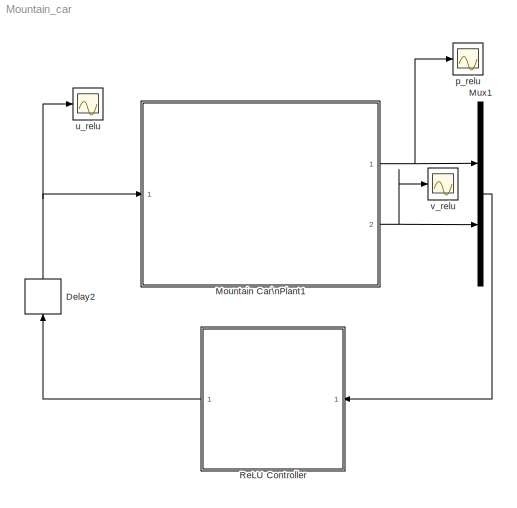
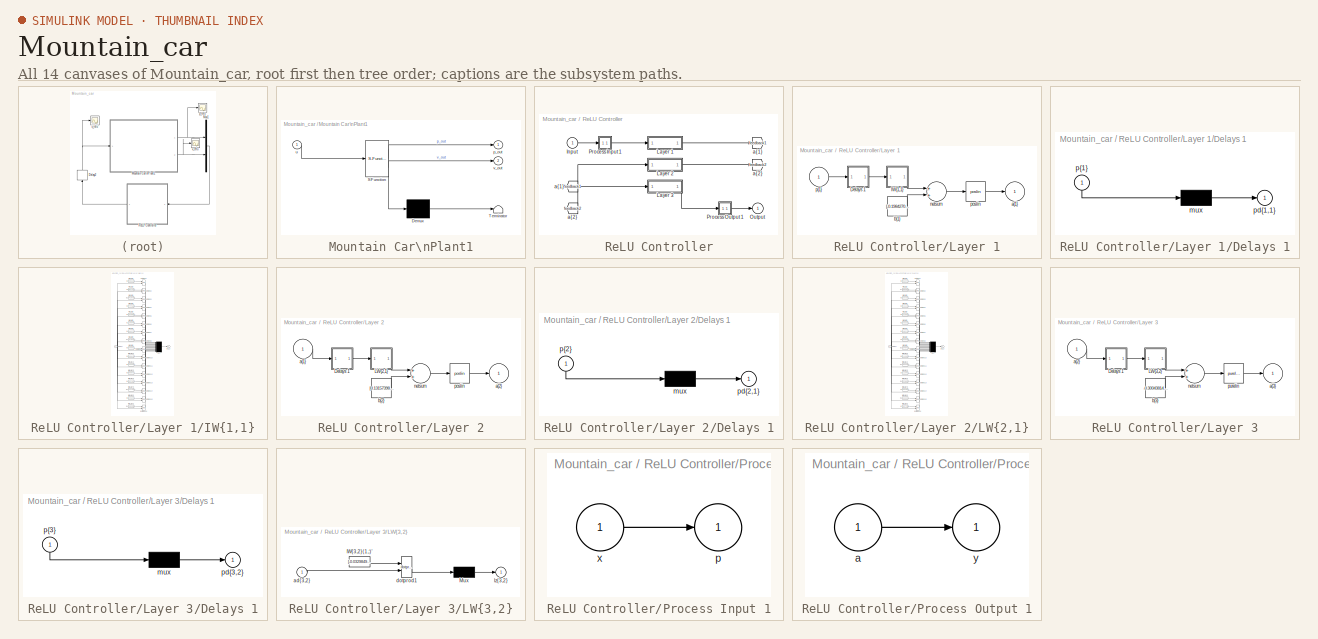
[diagram: thumbnail index - all 14 canvases of the model, root first then tree order]
MODEL Mountain_car
KIND model
BLOCK [Delay] Delay2
  DelayLength = 1
  InitialCondition = 0
  InputPortMap = u0
  Ports = [1, 1]
  SID = 380
BLOCK [SubSystem] Mountain Car\nPlant1
  ErrorFcn = Stateflow.Translate.translate
  PermitHierarchicalResolution = ExplicitOnly
  Ports = [1, 2]
  RequestExecContextInheritance = off
  SFBlockType = Chart
  SID = 378
  TreatAsAtomicUnit = on
BLOCK [Demux] Mountain Car\nPlant1/ Demux 
  Outputs = 1
  Ports = [1, 1]
  SID = 378::90
BLOCK [S-Function] Mountain Car\nPlant1/ SFunction 
  EnableBusSupport = on
  FunctionName = sf_sfun
  PortCounts = [1 3]
  Ports = [1, 3]
  SFcnIsStateOwnerBlock = off
  SFunctionDeploymentMode = off
  SID = 378::89
  Tag = Stateflow S-Function Mountain_car 1
BLOCK [Terminator] Mountain Car\nPlant1/ Terminator 
  SID = 378::91
BLOCK [Outport] Mountain Car\nPlant1/p_out
  IconDisplay = Port number
  SID = 378::94
BLOCK [Inport] Mountain Car\nPlant1/u
  IconDisplay = Port number
  SID = 378::93
BLOCK [Outport] Mountain Car\nPlant1/v_out
  IconDisplay = Port number
  Port = 2
  SID = 378::95
BLOCK [Mux] Mux1
  DisplayOption = bar
  Inputs = 2
  Ports = [2, 1]
  SID = 379
BLOCK [SubSystem] ReLU Controller
  Ports = [1, 1]
  RequestExecContextInheritance = off
  SID = 871
BLOCK [From] ReLU Controller/ a{1} 
  GotoTag = feedback1
  SID = 873
BLOCK [From] ReLU Controller/ a{2} 
  GotoTag = feedback2
  SID = 874
BLOCK [Inport] ReLU Controller/Input
  IconDisplay = Port number
  PortDimensions = 2
  SID = 872
BLOCK [SubSystem] ReLU Controller/Layer 1
  Ports = [1, 1]
  RequestExecContextInheritance = off
  SID = 875
BLOCK [SubSystem] ReLU Controller/Layer 1/Delays 1
  Ports = [1, 1]
  RequestExecContextInheritance = off
  SID = 877
BLOCK [Mux] ReLU Controller/Layer 1/Delays 1/mux
  Inputs = 1
  Ports = [1, 1]
  SID = 879
BLOCK [Outport] ReLU Controller/Layer 1/Delays 1/pd{1,1}
  IconDisplay = Port number
  SID = 880
BLOCK [Inport] ReLU Controller/Layer 1/Delays 1/p{1}
  IconDisplay = Port number
  PortDimensions = 2
  SID = 878
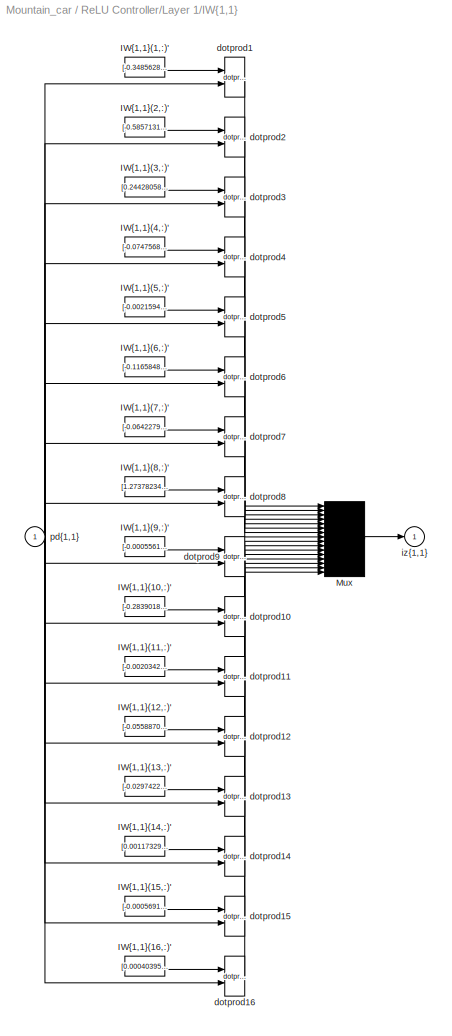
BLOCK [SubSystem] ReLU Controller/Layer 1/IW{1,1}
  Ports = [1, 1]
  RequestExecContextInheritance = off
  SID = 881
BLOCK [Constant] ReLU Controller/Layer 1/IW{1,1}/IW{1,1}(1,:)'
  SID = 883
  Value = [-0.348562847613831106041715202081832103431224822998046875;-1.65240573800335166509967166348360478878021240234375]
BLOCK [Constant] ReLU Controller/Layer 1/IW{1,1}/IW{1,1}(10,:)'
  SID = 884
  Value = [-0.2839018314838954726297970410087145864963531494140625;-3.52518355706391783854769528261385858058929443359375]
BLOCK [Constant] ReLU Controller/Layer 1/IW{1,1}/IW{1,1}(11,:)'
  SID = 885
  Value = [-0.0020342002422465699229547908544191159307956695556640625;-0.0022724958653689308375744904111570576787926256656646728515625]
BLOCK [Constant] ReLU Controller/Layer 1/IW{1,1}/IW{1,1}(12,:)'
  SID = 886
  Value = [-0.05588706100418290578790703193590161390602588653564453125;-0.0160068003198646398310689420441121910698711872100830078125]
BLOCK [Constant] ReLU Controller/Layer 1/IW{1,1}/IW{1,1}(13,:)'
  SID = 887
  Value = [-0.02974222116160064877110613679178641177713871002197265625;0.745456607589495501287046863581053912639617919921875]
BLOCK [Constant] ReLU Controller/Layer 1/IW{1,1}/IW{1,1}(14,:)'
  SID = 888
  Value = [0.0011732961938809246572879008141399026499129831790924072265625;-0.000543001556196413999455518961667621624656021595001220703125]
BLOCK [Constant] ReLU Controller/Layer 1/IW{1,1}/IW{1,1}(15,:)'
  SID = 889
  Value = [-0.000569175677719086577262264103893585343030281364917755126953125;0.0031515685445352814401942520561306082527153193950653076171875]
BLOCK [Constant] ReLU Controller/Layer 1/IW{1,1}/IW{1,1}(16,:)'
  SID = 890
  Value = [0.0004039511826204295161409085768156046469812281429767608642578125;0.0002282704932282597566801929378499380618450231850147247314453125]
BLOCK [Constant] ReLU Controller/Layer 1/IW{1,1}/IW{1,1}(2,:)'
  SID = 891
  Value = [-0.5857131847075069952524017935502342879772186279296875;0.44318605497440588525392968222149647772312164306640625]
BLOCK [Constant] ReLU Controller/Layer 1/IW{1,1}/IW{1,1}(3,:)'
  SID = 892
  Value = [0.2442805834309687285088585895209689624607563018798828125;1.6303609995706775936952226402354426681995391845703125]
BLOCK [Constant] ReLU Controller/Layer 1/IW{1,1}/IW{1,1}(4,:)'
  SID = 893
  Value = [-0.0747568175575949733779879124995204620063304901123046875;1.0944090779874553476247456273995339870452880859375]
BLOCK [Constant] ReLU Controller/Layer 1/IW{1,1}/IW{1,1}(5,:)'
  SID = 894
  Value = [-0.0021594126615349725113734979942137215402908623218536376953125;-0.00128416670957920528613194210976189424400217831134796142578125]
BLOCK [Constant] ReLU Controller/Layer 1/IW{1,1}/IW{1,1}(6,:)'
  SID = 895
  Value = [-0.1165848908540518535925656351537327282130718231201171875;0.2375447925571311513781580515569658018648624420166015625]
BLOCK [Constant] ReLU Controller/Layer 1/IW{1,1}/IW{1,1}(7,:)'
  SID = 896
  Value = [-0.0642279094021485363885659580773790366947650909423828125;0.51193444151615230541807477493421174585819244384765625]
BLOCK [Constant] ReLU Controller/Layer 1/IW{1,1}/IW{1,1}(8,:)'
  SID = 897
  Value = [1.2737823406388024682911463969503529369831085205078125;-0.410054151845961889488734186670626513659954071044921875]
BLOCK [Constant] ReLU Controller/Layer 1/IW{1,1}/IW{1,1}(9,:)'
  SID = 898
  Value = [-0.000556169140947096788361869723615882321610115468502044677734375;-0.00285606358020452921753218333833501674234867095947265625]
BLOCK [Mux] ReLU Controller/Layer 1/IW{1,1}/Mux
  Inputs = 16
  Ports = [16, 1]
  SID = 899
BLOCK [Reference] ReLU Controller/Layer 1/IW{1,1}/dotprod1  REF=neural/Weight Functions/dotprod
  Ports = [2, 1]
  SID = 900
  SourceBlock = neural/Weight Functions/dotprod
  SourceProductBaseCode = NN
  SourceProductName = Neural Network Toolbox
  SourceType = DOTPROD
BLOCK [Reference] ReLU Controller/Layer 1/IW{1,1}/dotprod10  REF=neural/Weight Functions/dotprod
  Ports = [2, 1]
  SID = 901
  SourceBlock = neural/Weight Functions/dotprod
  SourceProductBaseCode = NN
  SourceProductName = Neural Network Toolbox
  SourceType = DOTPROD
BLOCK [Reference] ReLU Controller/Layer 1/IW{1,1}/dotprod11  REF=neural/Weight Functions/dotprod
  Ports = [2, 1]
  SID = 902
  SourceBlock = neural/Weight Functions/dotprod
  SourceProductBaseCode = NN
  SourceProductName = Neural Network Toolbox
  SourceType = DOTPROD
BLOCK [Reference] ReLU Controller/Layer 1/IW{1,1}/dotprod12  REF=neural/Weight Functions/dotprod
  Ports = [2, 1]
  SID = 903
  SourceBlock = neural/Weight Functions/dotprod
  SourceProductBaseCode = NN
  SourceProductName = Neural Network Toolbox
  SourceType = DOTPROD
BLOCK [Reference] ReLU Controller/Layer 1/IW{1,1}/dotprod13  REF=neural/Weight Functions/dotprod
  Ports = [2, 1]
  SID = 904
  SourceBlock = neural/Weight Functions/dotprod
  SourceProductBaseCode = NN
  SourceProductName = Neural Network Toolbox
  SourceType = DOTPROD
BLOCK [Reference] ReLU Controller/Layer 1/IW{1,1}/dotprod14  REF=neural/Weight Functions/dotprod
  Ports = [2, 1]
  SID = 905
  SourceBlock = neural/Weight Functions/dotprod
  SourceProductBaseCode = NN
  SourceProductName = Neural Network Toolbox
  SourceType = DOTPROD
BLOCK [Reference] ReLU Controller/Layer 1/IW{1,1}/dotprod15  REF=neural/Weight Functions/dotprod
  Ports = [2, 1]
  SID = 906
  SourceBlock = neural/Weight Functions/dotprod
  SourceProductBaseCode = NN
  SourceProductName = Neural Network Toolbox
  SourceType = DOTPROD
BLOCK [Reference] ReLU Controller/Layer 1/IW{1,1}/dotprod16  REF=neural/Weight Functions/dotprod
  Ports = [2, 1]
  SID = 907
  SourceBlock = neural/Weight Functions/dotprod
  SourceProductBaseCode = NN
  SourceProductName = Neural Network Toolbox
  SourceType = DOTPROD
BLOCK [Reference] ReLU Controller/Layer 1/IW{1,1}/dotprod2  REF=neural/Weight Functions/dotprod
  Ports = [2, 1]
  SID = 908
  SourceBlock = neural/Weight Functions/dotprod
  SourceProductBaseCode = NN
  SourceProductName = Neural Network Toolbox
  SourceType = DOTPROD
BLOCK [Reference] ReLU Controller/Layer 1/IW{1,1}/dotprod3  REF=neural/Weight Functions/dotprod
  Ports = [2, 1]
  SID = 909
  SourceBlock = neural/Weight Functions/dotprod
  SourceProductBaseCode = NN
  SourceProductName = Neural Network Toolbox
  SourceType = DOTPROD
BLOCK [Reference] ReLU Controller/Layer 1/IW{1,1}/dotprod4  REF=neural/Weight Functions/dotprod
  Ports = [2, 1]
  SID = 910
  SourceBlock = neural/Weight Functions/dotprod
  SourceProductBaseCode = NN
  SourceProductName = Neural Network Toolbox
  SourceType = DOTPROD
BLOCK [Reference] ReLU Controller/Layer 1/IW{1,1}/dotprod5  REF=neural/Weight Functions/dotprod
  Ports = [2, 1]
  SID = 911
  SourceBlock = neural/Weight Functions/dotprod
  SourceProductBaseCode = NN
  SourceProductName = Neural Network Toolbox
  SourceType = DOTPROD
BLOCK [Reference] ReLU Controller/Layer 1/IW{1,1}/dotprod6  REF=neural/Weight Functions/dotprod
  Ports = [2, 1]
  SID = 912
  SourceBlock = neural/Weight Functions/dotprod
  SourceProductBaseCode = NN
  SourceProductName = Neural Network Toolbox
  SourceType = DOTPROD
BLOCK [Reference] ReLU Controller/Layer 1/IW{1,1}/dotprod7  REF=neural/Weight Functions/dotprod
  Ports = [2, 1]
  SID = 913
  SourceBlock = neural/Weight Functions/dotprod
  SourceProductBaseCode = NN
  SourceProductName = Neural Network Toolbox
  SourceType = DOTPROD
BLOCK [Reference] ReLU Controller/Layer 1/IW{1,1}/dotprod8  REF=neural/Weight Functions/dotprod
  Ports = [2, 1]
  SID = 914
  SourceBlock = neural/Weight Functions/dotprod
  SourceProductBaseCode = NN
  SourceProductName = Neural Network Toolbox
  SourceType = DOTPROD
BLOCK [Reference] ReLU Controller/Layer 1/IW{1,1}/dotprod9  REF=neural/Weight Functions/dotprod
  Ports = [2, 1]
  SID = 915
  SourceBlock = neural/Weight Functions/dotprod
  SourceProductBaseCode = NN
  SourceProductName = Neural Network Toolbox
  SourceType = DOTPROD
BLOCK [Outport] ReLU Controller/Layer 1/IW{1,1}/iz{1,1}
  IconDisplay = Port number
  SID = 916
BLOCK [Inport] ReLU Controller/Layer 1/IW{1,1}/pd{1,1}
  IconDisplay = Port number
  PortDimensions = 2
  SID = 882
BLOCK [Outport] ReLU Controller/Layer 1/a{1}
  IconDisplay = Port number
  InitialOutput = [0;0;0;0;0;0;0;0;0;0;0;0;0;0;0;0]
  SID = 920
BLOCK [Constant] ReLU Controller/Layer 1/b{1}
  SID = 917
  Value = [-0.19842707948950188967529584260773845016956329345703125;-0.82484856248449889282170488513656891882419586181640625;-0.33017571394162714693010229893843643367290496826171875;-0.136560710019531794667813073829165659844875335693359375;-0.0033155322685735817180019413541458561667241156101226806640625;-0.1641898548658718703929793036877526901662349700927734375;-0.1205203352762782981200118115339137148112058...<+560ch>
BLOCK [Sum] ReLU Controller/Layer 1/netsum
  Inputs = 2
  Ports = [2, 1]
  SID = 918
BLOCK [Reference] ReLU Controller/Layer 1/poslin  REF=neural/Transfer Functions/poslin
  Ports = [1, 1]
  SID = 919
  SourceBlock = neural/Transfer Functions/poslin
  SourceProductBaseCode = NN
  SourceProductName = Neural Network Toolbox
  SourceType = POSLIN
BLOCK [Inport] ReLU Controller/Layer 1/p{1}
  IconDisplay = Port number
  PortDimensions = 2
  SID = 876
BLOCK [SubSystem] ReLU Controller/Layer 2
  Ports = [1, 1]
  RequestExecContextInheritance = off
  SID = 921
BLOCK [SubSystem] ReLU Controller/Layer 2/Delays 1
  Ports = [1, 1]
  RequestExecContextInheritance = off
  SID = 923
BLOCK [Mux] ReLU Controller/Layer 2/Delays 1/mux
  Inputs = 1
  Ports = [1, 1]
  SID = 925
BLOCK [Outport] ReLU Controller/Layer 2/Delays 1/pd{2,1}
  IconDisplay = Port number
  SID = 926
BLOCK [Inport] ReLU Controller/Layer 2/Delays 1/p{2}
  IconDisplay = Port number
  PortDimensions = 16
  SID = 924
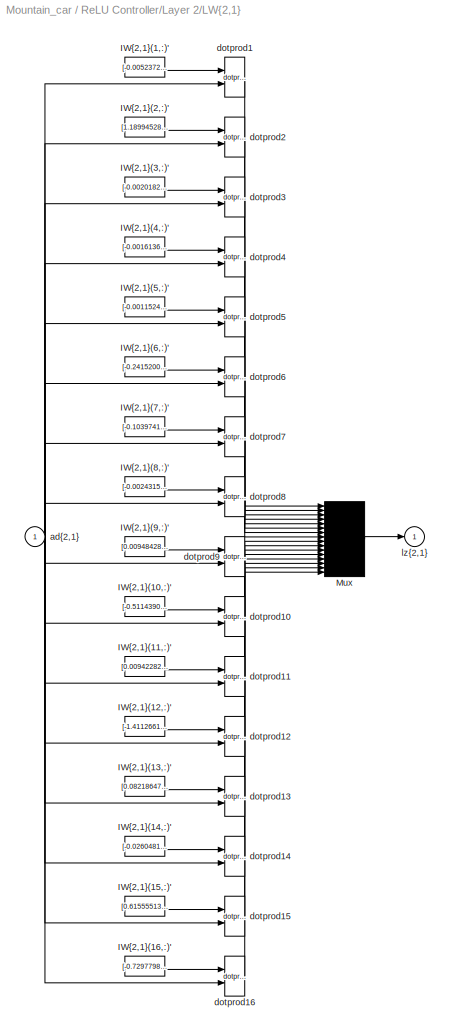
BLOCK [SubSystem] ReLU Controller/Layer 2/LW{2,1}
  Ports = [1, 1]
  RequestExecContextInheritance = off
  SID = 927
BLOCK [Constant] ReLU Controller/Layer 2/LW{2,1}/IW{2,1}(1,:)'
  SID = 929
  Value = [-0.005237243223805816694227388552462798543274402618408203125;0.00503378156334402700189389889828817103989422321319580078125;-0.00069166898801620107194165765207571894279681146144866943359375;-0.01434045966512993881825099862226124969311058521270751953125;-0.00298714015918485724376818524206100846640765666961669921875;0.02108252964325500744546815212743240408599376678466796875;0.07358578977761696948700...<+599ch>
BLOCK [Constant] ReLU Controller/Layer 2/LW{2,1}/IW{2,1}(10,:)'
  SID = 930
  Value = [-0.51143908204196197875290863521513529121875762939453125;-0.0629753401477420038379051447918755002319812774658203125;0.4148378321030830040427872518193908035755157470703125;0.6484289283279636162404813148896209895610809326171875;-0.00174678205904930700272104093784264478017576038837432861328125;0.223011569577855561785639793015434406697750091552734375;0.459284959640543444248095283910515718162059783935...<+558ch>
BLOCK [Constant] ReLU Controller/Layer 2/LW{2,1}/IW{2,1}(11,:)'
  SID = 931
  Value = [0.00942282931057902839455664434353820979595184326171875;0.0028904967967546203906625823520926132914610207080841064453125;-0.0004595582351457297583773031757203852976090274751186370849609375;0.00131390800811133356962301377279800362884998321533203125;0.002478005465313070330990452561081838211975991725921630859375;0.00039166452724749621465416549170868165674619376659393310546875;-0.002180063214496620431...<+620ch>
BLOCK [Constant] ReLU Controller/Layer 2/LW{2,1}/IW{2,1}(12,:)'
  SID = 932
  Value = [-1.411266109279275315913082522456534206867218017578125;0.019565922441010026588958936599738080985844135284423828125;0.07354248507361516029590120524517260491847991943359375;0.07774449888305236255892083363505662418901920318603515625;0.00026726699972753919544443679257028634310699999332427978515625;0.03302012332293803587024427770302281714975833892822265625;0.1429751442139763073502223278410383500158786...<+569ch>
BLOCK [Constant] ReLU Controller/Layer 2/LW{2,1}/IW{2,1}(13,:)'
  SID = 933
  Value = [0.08218647484270864833622027845194679684937000274658203125;0.01084047895224183981344179272809924441389739513397216796875;-0.178638397928594649943789818280492909252643585205078125;-0.0983961582550936519897533116818522103130817413330078125;0.0003635638631690380514864535665964240251923911273479461669921875;-0.024624290353607823644832564013995579443871974945068359375;0.0630341784988404929546135235796...<+583ch>
BLOCK [Constant] ReLU Controller/Layer 2/LW{2,1}/IW{2,1}(14,:)'
  SID = 934
  Value = [-0.02604811843116398850650483609570073895156383514404296875;0.039105294341659220525020401737492647953331470489501953125;-0.6854929799926183786595856872736476361751556396484375;-1.2282979435447149985094483781722374260425567626953125;0.0023541350711067214607208342158628511242568492889404296875;-0.419126625007286202073686354196979664266109466552734375;-0.819702140634721132528284215368330478668212890...<+546ch>
BLOCK [Constant] ReLU Controller/Layer 2/LW{2,1}/IW{2,1}(15,:)'
  SID = 935
  Value = [0.6155551351294812345571472178562544286251068115234375;0.0046001053168681672878026489570402191020548343658447265625;-0.5719041305267393848765777875087223947048187255859375;-0.85759411877788915834486260791891254484653472900390625;-0.00258674523061430509940361588405721704475581645965576171875;-0.2963866507386507809229669874184764921665191650390625;-0.488778959742162621981975689777755178511142730712...<+551ch>
BLOCK [Constant] ReLU Controller/Layer 2/LW{2,1}/IW{2,1}(16,:)'
  SID = 936
  Value = [-0.72977988035714236314532854521530680358409881591796875;-0.08910289179525847369500723971214029006659984588623046875;0.428292341106007612427930553167243488132953643798828125;0.95835178195288650560001997291692532598972320556640625;-0.001519837702163150117140588690745062194764614105224609375;0.3254200300566605363883354584686458110809326171875;0.5587164672175504165352322161197662353515625;-0.4788306...<+541ch>
BLOCK [Constant] ReLU Controller/Layer 2/LW{2,1}/IW{2,1}(2,:)'
  SID = 937
  Value = [1.1899452875869338530634422568255104124546051025390625;0.1230910479948144342632332381981541402637958526611328125;-0.5422283071434657042431126683368347585201263427734375;-1.0206292994610122182308487026602961122989654541015625;0.0017583047173152610391511085907723099808208644390106201171875;-0.349586781245586897259869374465779401361942291259765625;-0.5585963884754069352922556390694808214902877807617...<+547ch>
BLOCK [Constant] ReLU Controller/Layer 2/LW{2,1}/IW{2,1}(3,:)'
  SID = 938
  Value = [-0.0020182713626719470285941770981708032195456326007843017578125;0.00305663369385729237481807984977422165684401988983154296875;-0.001583543565737207704791078555217609391547739505767822265625;-0.0011931709258133130734103044545690863742493093013763427734375;0.0017473826263246909108739490790185300284065306186676025390625;0.0004198049462744922705019490205557985973428003489971160888671875;0.0004099083...<+632ch>
BLOCK [Constant] ReLU Controller/Layer 2/LW{2,1}/IW{2,1}(4,:)'
  SID = 939
  Value = [-0.00161369877411448561961571090961342633818276226520538330078125;0.00059574225889681372593520425340329893515445291996002197265625;0.0027248112706829037688027739250173908658325672149658203125;0.000186235889520932154130028468586033341125585138797760009765625;0.0029115992657808534467556160763024308835156261920928955078125;-0.0033130612554963649075967513368823347263969480991363525390625;-0.003354986...<+641ch>
BLOCK [Constant] ReLU Controller/Layer 2/LW{2,1}/IW{2,1}(5,:)'
  SID = 940
  Value = [-0.0011524364233181879670075975496956743882037699222564697265625;0.0027540298678904030597880403519184255856089293956756591796875;-0.00057762158493066960603112836025729848188348114490509033203125;0.0026563677483517574885729661815503277466632425785064697265625;0.00145588560512573280368575634469152646488510072231292724609375;0.002074913814746711347714036577372098690830171108245849609375;-0.003383772...<+638ch>
BLOCK [Constant] ReLU Controller/Layer 2/LW{2,1}/IW{2,1}(6,:)'
  SID = 941
  Value = [-0.241520076144322803912700692308135330677032470703125;-0.0318765647519468064974290655300137586891651153564453125;0.181223825696174623001155623569502495229244232177734375;0.311597980209323666134224595225532539188861846923828125;-0.0025860731454763231929039335454945103265345096588134765625;0.10533522634288404462576949072172283194959163665771484375;0.199925697688085990399997626809636130928993225097...<+558ch>
BLOCK [Constant] ReLU Controller/Layer 2/LW{2,1}/IW{2,1}(7,:)'
  SID = 942
  Value = [-0.10397419503319195455137702310821623541414737701416015625;-0.01309865143530745089373024114820509566925466060638427734375;0.0708504400110334942031187210886855609714984893798828125;0.11575107714388710444808339161681942641735076904296875;-0.0033045758161354380107177508563154333387501537799835205078125;0.040836738265295650929243009841229650191962718963623046875;0.07627241718338911846686301032605115...<+580ch>
BLOCK [Constant] ReLU Controller/Layer 2/LW{2,1}/IW{2,1}(8,:)'
  SID = 943
  Value = [-0.0024315015690445419306586760654909085133112967014312744140625;0.002115717116402882590209255653235231875441968441009521484375;0.00083760902698425750319277671707141053047962486743927001953125;0.000849064752478394225120028604436583918868564069271087646484375;-0.003261001731163770504806631578276210348121821880340576171875;-0.000771834347589562923264150384738968568854033946990966796875;-0.002042177...<+632ch>
BLOCK [Constant] ReLU Controller/Layer 2/LW{2,1}/IW{2,1}(9,:)'
  SID = 944
  Value = [0.00948428214091578090927381339270141324959695339202880859375;-0.000719908698207419946342444649900471631553955376148223876953125;-0.002651631874824963118475462664491715258918702602386474609375;-0.00333251240856166468240484590523919905535876750946044921875;-0.003246578786211612270562465454304401646368205547332763671875;0.0025021910264577452466527862640077728428877890110015869140625;-0.001674236107...<+633ch>
BLOCK [Mux] ReLU Controller/Layer 2/LW{2,1}/Mux
  Inputs = 16
  Ports = [16, 1]
  SID = 945
BLOCK [Inport] ReLU Controller/Layer 2/LW{2,1}/ad{2,1}
  IconDisplay = Port number
  PortDimensions = 16
  SID = 928
BLOCK [Reference] ReLU Controller/Layer 2/LW{2,1}/dotprod1  REF=neural/Weight Functions/dotprod
  Ports = [2, 1]
  SID = 946
  SourceBlock = neural/Weight Functions/dotprod
  SourceProductBaseCode = NN
  SourceProductName = Neural Network Toolbox
  SourceType = DOTPROD
BLOCK [Reference] ReLU Controller/Layer 2/LW{2,1}/dotprod10  REF=neural/Weight Functions/dotprod
  Ports = [2, 1]
  SID = 947
  SourceBlock = neural/Weight Functions/dotprod
  SourceProductBaseCode = NN
  SourceProductName = Neural Network Toolbox
  SourceType = DOTPROD
BLOCK [Reference] ReLU Controller/Layer 2/LW{2,1}/dotprod11  REF=neural/Weight Functions/dotprod
  Ports = [2, 1]
  SID = 948
  SourceBlock = neural/Weight Functions/dotprod
  SourceProductBaseCode = NN
  SourceProductName = Neural Network Toolbox
  SourceType = DOTPROD
BLOCK [Reference] ReLU Controller/Layer 2/LW{2,1}/dotprod12  REF=neural/Weight Functions/dotprod
  Ports = [2, 1]
  SID = 949
  SourceBlock = neural/Weight Functions/dotprod
  SourceProductBaseCode = NN
  SourceProductName = Neural Network Toolbox
  SourceType = DOTPROD
BLOCK [Reference] ReLU Controller/Layer 2/LW{2,1}/dotprod13  REF=neural/Weight Functions/dotprod
  Ports = [2, 1]
  SID = 950
  SourceBlock = neural/Weight Functions/dotprod
  SourceProductBaseCode = NN
  SourceProductName = Neural Network Toolbox
  SourceType = DOTPROD
BLOCK [Reference] ReLU Controller/Layer 2/LW{2,1}/dotprod14  REF=neural/Weight Functions/dotprod
  Ports = [2, 1]
  SID = 951
  SourceBlock = neural/Weight Functions/dotprod
  SourceProductBaseCode = NN
  SourceProductName = Neural Network Toolbox
  SourceType = DOTPROD
BLOCK [Reference] ReLU Controller/Layer 2/LW{2,1}/dotprod15  REF=neural/Weight Functions/dotprod
  Ports = [2, 1]
  SID = 952
  SourceBlock = neural/Weight Functions/dotprod
  SourceProductBaseCode = NN
  SourceProductName = Neural Network Toolbox
  SourceType = DOTPROD
BLOCK [Reference] ReLU Controller/Layer 2/LW{2,1}/dotprod16  REF=neural/Weight Functions/dotprod
  Ports = [2, 1]
  SID = 953
  SourceBlock = neural/Weight Functions/dotprod
  SourceProductBaseCode = NN
  SourceProductName = Neural Network Toolbox
  SourceType = DOTPROD
BLOCK [Reference] ReLU Controller/Layer 2/LW{2,1}/dotprod2  REF=neural/Weight Functions/dotprod
  Ports = [2, 1]
  SID = 954
  SourceBlock = neural/Weight Functions/dotprod
  SourceProductBaseCode = NN
  SourceProductName = Neural Network Toolbox
  SourceType = DOTPROD
BLOCK [Reference] ReLU Controller/Layer 2/LW{2,1}/dotprod3  REF=neural/Weight Functions/dotprod
  Ports = [2, 1]
  SID = 955
  SourceBlock = neural/Weight Functions/dotprod
  SourceProductBaseCode = NN
  SourceProductName = Neural Network Toolbox
  SourceType = DOTPROD
BLOCK [Reference] ReLU Controller/Layer 2/LW{2,1}/dotprod4  REF=neural/Weight Functions/dotprod
  Ports = [2, 1]
  SID = 956
  SourceBlock = neural/Weight Functions/dotprod
  SourceProductBaseCode = NN
  SourceProductName = Neural Network Toolbox
  SourceType = DOTPROD
BLOCK [Reference] ReLU Controller/Layer 2/LW{2,1}/dotprod5  REF=neural/Weight Functions/dotprod
  Ports = [2, 1]
  SID = 957
  SourceBlock = neural/Weight Functions/dotprod
  SourceProductBaseCode = NN
  SourceProductName = Neural Network Toolbox
  SourceType = DOTPROD
BLOCK [Reference] ReLU Controller/Layer 2/LW{2,1}/dotprod6  REF=neural/Weight Functions/dotprod
  Ports = [2, 1]
  SID = 958
  SourceBlock = neural/Weight Functions/dotprod
  SourceProductBaseCode = NN
  SourceProductName = Neural Network Toolbox
  SourceType = DOTPROD
BLOCK [Reference] ReLU Controller/Layer 2/LW{2,1}/dotprod7  REF=neural/Weight Functions/dotprod
  Ports = [2, 1]
  SID = 959
  SourceBlock = neural/Weight Functions/dotprod
  SourceProductBaseCode = NN
  SourceProductName = Neural Network Toolbox
  SourceType = DOTPROD
BLOCK [Reference] ReLU Controller/Layer 2/LW{2,1}/dotprod8  REF=neural/Weight Functions/dotprod
  Ports = [2, 1]
  SID = 960
  SourceBlock = neural/Weight Functions/dotprod
  SourceProductBaseCode = NN
  SourceProductName = Neural Network Toolbox
  SourceType = DOTPROD
BLOCK [Reference] ReLU Controller/Layer 2/LW{2,1}/dotprod9  REF=neural/Weight Functions/dotprod
  Ports = [2, 1]
  SID = 961
  SourceBlock = neural/Weight Functions/dotprod
  SourceProductBaseCode = NN
  SourceProductName = Neural Network Toolbox
  SourceType = DOTPROD
BLOCK [Outport] ReLU Controller/Layer 2/LW{2,1}/lz{2,1}
  IconDisplay = Port number
  SID = 962
BLOCK [Inport] ReLU Controller/Layer 2/a{1} 
  IconDisplay = Port number
  PortDimensions = 16
  SID = 922
BLOCK [Outport] ReLU Controller/Layer 2/a{2}
  IconDisplay = Port number
  InitialOutput = [0;0;0;0;0;0;0;0;0;0;0;0;0;0;0;0]
  SID = 966
BLOCK [Constant] ReLU Controller/Layer 2/b{2}
  SID = 963
  Value = [0.131573986155091360306101933019817806780338287353515625;0.06112546510003825928070142481374205090105533599853515625;0.000432920216105484902124889146080022328533232212066650390625;-0.00129211182043121783867556384706176686449907720088958740234375;-0.000151416871686620266475309382059322160785086452960968017578125;0.07366846853674687001234389072124031372368335723876953125;-0.0350503585671957176850277...<+557ch>
BLOCK [Sum] ReLU Controller/Layer 2/netsum
  Inputs = 2
  Ports = [2, 1]
  SID = 964
BLOCK [Reference] ReLU Controller/Layer 2/poslin  REF=neural/Transfer Functions/poslin
  Ports = [1, 1]
  SID = 965
  SourceBlock = neural/Transfer Functions/poslin
  SourceProductBaseCode = NN
  SourceProductName = Neural Network Toolbox
  SourceType = POSLIN
BLOCK [SubSystem] ReLU Controller/Layer 3
  Ports = [1, 1]
  RequestExecContextInheritance = off
  SID = 967
BLOCK [SubSystem] ReLU Controller/Layer 3/Delays 1
  Ports = [1, 1]
  RequestExecContextInheritance = off
  SID = 969
BLOCK [Mux] ReLU Controller/Layer 3/Delays 1/mux
  Inputs = 1
  Ports = [1, 1]
  SID = 971
BLOCK [Outport] ReLU Controller/Layer 3/Delays 1/pd{3,2}
  IconDisplay = Port number
  SID = 972
BLOCK [Inport] ReLU Controller/Layer 3/Delays 1/p{3}
  IconDisplay = Port number
  PortDimensions = 16
  SID = 970
BLOCK [SubSystem] ReLU Controller/Layer 3/LW{3,2}
  Ports = [1, 1]
  RequestExecContextInheritance = off
  SID = 973
BLOCK [Constant] ReLU Controller/Layer 3/LW{3,2}/IW{3,2}(1,:)'
  SID = 975
  Value = [-0.032984948942841395280733962636077194474637508392333984375;0.8352446102172426112275616105762310326099395751953125;-0.00018778882435286804318715081496549146322649903595447540283203125;-0.00015733433815215435748469108290237272740341722965240478515625;-0.003364496013919657767254900448961052461527287960052490234375;0.5697180371777166296709538073628209531307220458984375;0.190104836580280572855272680...<+550ch>
BLOCK [Mux] ReLU Controller/Layer 3/LW{3,2}/Mux
  Inputs = 1
  Ports = [1, 1]
  SID = 976
BLOCK [Inport] ReLU Controller/Layer 3/LW{3,2}/ad{3,2}
  IconDisplay = Port number
  PortDimensions = 16
  SID = 974
BLOCK [Reference] ReLU Controller/Layer 3/LW{3,2}/dotprod1  REF=neural/Weight Functions/dotprod
  Ports = [2, 1]
  SID = 977
  SourceBlock = neural/Weight Functions/dotprod
  SourceProductBaseCode = NN
  SourceProductName = Neural Network Toolbox
  SourceType = DOTPROD
BLOCK [Outport] ReLU Controller/Layer 3/LW{3,2}/lz{3,2}
  IconDisplay = Port number
  SID = 978
BLOCK [Inport] ReLU Controller/Layer 3/a{2} 
  IconDisplay = Port number
  PortDimensions = 16
  SID = 968
BLOCK [Outport] ReLU Controller/Layer 3/a{3}
  IconDisplay = Port number
  InitialOutput = 0
  SID = 982
BLOCK [Constant] ReLU Controller/Layer 3/b{3}
  SID = 979
  Value = -0.300438141595847252318662867764942348003387451171875
BLOCK [Sum] ReLU Controller/Layer 3/netsum
  Inputs = 2
  Ports = [2, 1]
  SID = 980
BLOCK [Reference] ReLU Controller/Layer 3/purelin  REF=neural/Transfer Functions/purelin
  Ports = [1, 1]
  SID = 981
  SourceBlock = neural/Transfer Functions/purelin
  SourceProductBaseCode = NN
  SourceProductName = Neural Network Toolbox
  SourceType = PURELIN
BLOCK [Outport] ReLU Controller/Output
  IconDisplay = Port number
  InitialOutput = 0
  SID = 991
BLOCK [SubSystem] ReLU Controller/Process Input 1
  Ports = [1, 1]
  RequestExecContextInheritance = off
  SID = 983
BLOCK [Outport] ReLU Controller/Process Input 1/p
  IconDisplay = Port number
  PortDimensions = 2
  SID = 985
BLOCK [Inport] ReLU Controller/Process Input 1/x
  IconDisplay = Port number
  PortDimensions = 2
  SID = 984
BLOCK [SubSystem] ReLU Controller/Process Output 1
  Ports = [1, 1]
  RequestExecContextInheritance = off
  SID = 986
BLOCK [Inport] ReLU Controller/Process Output 1/a
  IconDisplay = Port number
  PortDimensions = 1
  SID = 987
BLOCK [Outport] ReLU Controller/Process Output 1/y
  IconDisplay = Port number
  PortDimensions = 1
  SID = 988
BLOCK [Goto] ReLU Controller/a{1}
  GotoTag = feedback1
  SID = 989
BLOCK [Goto] ReLU Controller/a{2}
  GotoTag = feedback2
  SID = 990
BLOCK [Scope] p_relu
  Floating = off
  NumInputPorts = 1
  Ports = [1]
  SID = 382
  ScopeSpecificationString = Simulink.scopes.TimeScopeBlockCfg('CurrentConfiguration', extmgr.ConfigurationSet(extmgr.Configuration('Core','General UI',true),extmgr.Configuration('Core','Source UI',true),extmgr.Configuration('Sources','WiredSimulink',true,'DataLoggingVariableName','ScopeData3'),extmgr.Configuration('Visuals','Time Domain',true,'SerializedDisplays',{struct('MinYLimReal','-1.24991','MaxYLimReal','1.15654','YLab...<+1411ch>
BLOCK [Scope] u_relu
  Floating = off
  NumInputPorts = 1
  Ports = [1]
  SID = 381
  ScopeSpecificationString = Simulink.scopes.TimeScopeBlockCfg('CurrentConfiguration', extmgr.ConfigurationSet(extmgr.Configuration('Core','General UI',true),extmgr.Configuration('Core','Source UI',true),extmgr.Configuration('Sources','WiredSimulink',true,'DataLoggingVariableName','ScopeData2'),extmgr.Configuration('Visuals','Time Domain',true,'SerializedDisplays',{struct('MinYLimReal','-0.12397','MaxYLimReal','1.11572','YLab...<+1395ch>
BLOCK [Scope] v_relu
  Floating = off
  NumInputPorts = 1
  Ports = [1]
  SID = 383
  ScopeSpecificationString = Simulink.scopes.TimeScopeBlockCfg('CurrentConfiguration', extmgr.ConfigurationSet(extmgr.Configuration('Core','General UI',true),extmgr.Configuration('Core','Source UI',true),extmgr.Configuration('Sources','WiredSimulink',true,'DataLoggingVariableName','ScopeData4'),extmgr.Configuration('Visuals','Time Domain',true,'SerializedDisplays',{struct('MinYLimReal','-0.02902','MaxYLimReal','0.0743','YLabe...<+1407ch>
NET Delay2:1 -> Mountain Car\nPlant1:1, u_relu:1
LINE Mountain Car\nPlant1/ Demux :1 -> Mountain Car\nPlant1/ Terminator :1
LINE Mountain Car\nPlant1/ SFunction :1 -> Mountain Car\nPlant1/ Demux :1
LINE Mountain Car\nPlant1/ SFunction :2 -> Mountain Car\nPlant1/p_out:1
LINE Mountain Car\nPlant1/ SFunction :3 -> Mountain Car\nPlant1/v_out:1
LINE Mountain Car\nPlant1/u:1 -> Mountain Car\nPlant1/ SFunction :1
NET Mountain Car\nPlant1:1 -> Mux1:1, p_relu:1
NET Mountain Car\nPlant1:2 -> Mux1:2, v_relu:1
LINE Mux1:1 -> ReLU Controller:1
LINE ReLU Controller/ a{1} :1 -> ReLU Controller/Layer 2:1
LINE ReLU Controller/ a{2} :1 -> ReLU Controller/Layer 3:1
LINE ReLU Controller/Input:1 -> ReLU Controller/Process Input 1:1
LINE ReLU Controller/Layer 1/Delays 1/mux:1 -> ReLU Controller/Layer 1/Delays 1/pd{1,1}:1
LINE ReLU Controller/Layer 1/Delays 1/p{1}:1 -> ReLU Controller/Layer 1/Delays 1/mux:1
LINE ReLU Controller/Layer 1/Delays 1:1 -> ReLU Controller/Layer 1/IW{1,1}:1
LINE ReLU Controller/Layer 1/IW{1,1}/IW{1,1}(1,:)':1 -> ReLU Controller/Layer 1/IW{1,1}/dotprod1:1
LINE ReLU Controller/Layer 1/IW{1,1}/IW{1,1}(10,:)':1 -> ReLU Controller/Layer 1/IW{1,1}/dotprod10:1
LINE ReLU Controller/Layer 1/IW{1,1}/IW{1,1}(11,:)':1 -> ReLU Controller/Layer 1/IW{1,1}/dotprod11:1
LINE ReLU Controller/Layer 1/IW{1,1}/IW{1,1}(12,:)':1 -> ReLU Controller/Layer 1/IW{1,1}/dotprod12:1
LINE ReLU Controller/Layer 1/IW{1,1}/IW{1,1}(13,:)':1 -> ReLU Controller/Layer 1/IW{1,1}/dotprod13:1
LINE ReLU Controller/Layer 1/IW{1,1}/IW{1,1}(14,:)':1 -> ReLU Controller/Layer 1/IW{1,1}/dotprod14:1
LINE ReLU Controller/Layer 1/IW{1,1}/IW{1,1}(15,:)':1 -> ReLU Controller/Layer 1/IW{1,1}/dotprod15:1
LINE ReLU Controller/Layer 1/IW{1,1}/IW{1,1}(16,:)':1 -> ReLU Controller/Layer 1/IW{1,1}/dotprod16:1
LINE ReLU Controller/Layer 1/IW{1,1}/IW{1,1}(2,:)':1 -> ReLU Controller/Layer 1/IW{1,1}/dotprod2:1
LINE ReLU Controller/Layer 1/IW{1,1}/IW{1,1}(3,:)':1 -> ReLU Controller/Layer 1/IW{1,1}/dotprod3:1
LINE ReLU Controller/Layer 1/IW{1,1}/IW{1,1}(4,:)':1 -> ReLU Controller/Layer 1/IW{1,1}/dotprod4:1
LINE ReLU Controller/Layer 1/IW{1,1}/IW{1,1}(5,:)':1 -> ReLU Controller/Layer 1/IW{1,1}/dotprod5:1
LINE ReLU Controller/Layer 1/IW{1,1}/IW{1,1}(6,:)':1 -> ReLU Controller/Layer 1/IW{1,1}/dotprod6:1
LINE ReLU Controller/Layer 1/IW{1,1}/IW{1,1}(7,:)':1 -> ReLU Controller/Layer 1/IW{1,1}/dotprod7:1
LINE ReLU Controller/Layer 1/IW{1,1}/IW{1,1}(8,:)':1 -> ReLU Controller/Layer 1/IW{1,1}/dotprod8:1
LINE ReLU Controller/Layer 1/IW{1,1}/IW{1,1}(9,:)':1 -> ReLU Controller/Layer 1/IW{1,1}/dotprod9:1
LINE ReLU Controller/Layer 1/IW{1,1}/Mux:1 -> ReLU Controller/Layer 1/IW{1,1}/iz{1,1}:1
LINE ReLU Controller/Layer 1/IW{1,1}/dotprod10:1 -> ReLU Controller/Layer 1/IW{1,1}/Mux:10
LINE ReLU Controller/Layer 1/IW{1,1}/dotprod11:1 -> ReLU Controller/Layer 1/IW{1,1}/Mux:11
LINE ReLU Controller/Layer 1/IW{1,1}/dotprod12:1 -> ReLU Controller/Layer 1/IW{1,1}/Mux:12
LINE ReLU Controller/Layer 1/IW{1,1}/dotprod13:1 -> ReLU Controller/Layer 1/IW{1,1}/Mux:13
LINE ReLU Controller/Layer 1/IW{1,1}/dotprod14:1 -> ReLU Controller/Layer 1/IW{1,1}/Mux:14
LINE ReLU Controller/Layer 1/IW{1,1}/dotprod15:1 -> ReLU Controller/Layer 1/IW{1,1}/Mux:15
LINE ReLU Controller/Layer 1/IW{1,1}/dotprod16:1 -> ReLU Controller/Layer 1/IW{1,1}/Mux:16
LINE ReLU Controller/Layer 1/IW{1,1}/dotprod1:1 -> ReLU Controller/Layer 1/IW{1,1}/Mux:1
LINE ReLU Controller/Layer 1/IW{1,1}/dotprod2:1 -> ReLU Controller/Layer 1/IW{1,1}/Mux:2
LINE ReLU Controller/Layer 1/IW{1,1}/dotprod3:1 -> ReLU Controller/Layer 1/IW{1,1}/Mux:3
LINE ReLU Controller/Layer 1/IW{1,1}/dotprod4:1 -> ReLU Controller/Layer 1/IW{1,1}/Mux:4
LINE ReLU Controller/Layer 1/IW{1,1}/dotprod5:1 -> ReLU Controller/Layer 1/IW{1,1}/Mux:5
LINE ReLU Controller/Layer 1/IW{1,1}/dotprod6:1 -> ReLU Controller/Layer 1/IW{1,1}/Mux:6
LINE ReLU Controller/Layer 1/IW{1,1}/dotprod7:1 -> ReLU Controller/Layer 1/IW{1,1}/Mux:7
LINE ReLU Controller/Layer 1/IW{1,1}/dotprod8:1 -> ReLU Controller/Layer 1/IW{1,1}/Mux:8
LINE ReLU Controller/Layer 1/IW{1,1}/dotprod9:1 -> ReLU Controller/Layer 1/IW{1,1}/Mux:9
NET ReLU Controller/Layer 1/IW{1,1}/pd{1,1}:1 -> ReLU Controller/Layer 1/IW{1,1}/dotprod10:2, ReLU Controller/Layer 1/IW{1,1}/dotprod11:2, ReLU Controller/Layer 1/IW{1,1}/dotprod12:2, ReLU Controller/Layer 1/IW{1,1}/dotprod13:2, ReLU Controller/Layer 1/IW{1,1}/dotprod14:2, ReLU Controller/Layer 1/IW{1,1}/dotprod15:2, ReLU Controller/Layer 1/IW{1,1}/dotprod16:2, ReLU Controller/Layer 1/IW{1,1}/dotprod1:2, ReLU Controller/Layer 1/IW{1,1}/dotprod2:2, ReLU Controller/Layer 1/IW{1,1}/dotprod3:2, ReLU Controller/Layer 1/IW{1,1}/dotprod4:2, ReLU Controller/Layer 1/IW{1,1}/dotprod5:2, ReLU Controller/Layer 1/IW{1,1}/dotprod6:2, ReLU Controller/Layer 1/IW{1,1}/dotprod7:2, ReLU Controller/Layer 1/IW{1,1}/dotprod8:2, ReLU Controller/Layer 1/IW{1,1}/dotprod9:2
LINE ReLU Controller/Layer 1/IW{1,1}:1 -> ReLU Controller/Layer 1/netsum:1
LINE ReLU Controller/Layer 1/b{1}:1 -> ReLU Controller/Layer 1/netsum:2
LINE ReLU Controller/Layer 1/netsum:1 -> ReLU Controller/Layer 1/poslin:1
LINE ReLU Controller/Layer 1/poslin:1 -> ReLU Controller/Layer 1/a{1}:1
LINE ReLU Controller/Layer 1/p{1}:1 -> ReLU Controller/Layer 1/Delays 1:1
LINE ReLU Controller/Layer 1:1 -> ReLU Controller/a{1}:1
LINE ReLU Controller/Layer 2/Delays 1/mux:1 -> ReLU Controller/Layer 2/Delays 1/pd{2,1}:1
LINE ReLU Controller/Layer 2/Delays 1/p{2}:1 -> ReLU Controller/Layer 2/Delays 1/mux:1
LINE ReLU Controller/Layer 2/Delays 1:1 -> ReLU Controller/Layer 2/LW{2,1}:1
LINE ReLU Controller/Layer 2/LW{2,1}/IW{2,1}(1,:)':1 -> ReLU Controller/Layer 2/LW{2,1}/dotprod1:1
LINE ReLU Controller/Layer 2/LW{2,1}/IW{2,1}(10,:)':1 -> ReLU Controller/Layer 2/LW{2,1}/dotprod10:1
LINE ReLU Controller/Layer 2/LW{2,1}/IW{2,1}(11,:)':1 -> ReLU Controller/Layer 2/LW{2,1}/dotprod11:1
LINE ReLU Controller/Layer 2/LW{2,1}/IW{2,1}(12,:)':1 -> ReLU Controller/Layer 2/LW{2,1}/dotprod12:1
LINE ReLU Controller/Layer 2/LW{2,1}/IW{2,1}(13,:)':1 -> ReLU Controller/Layer 2/LW{2,1}/dotprod13:1
LINE ReLU Controller/Layer 2/LW{2,1}/IW{2,1}(14,:)':1 -> ReLU Controller/Layer 2/LW{2,1}/dotprod14:1
LINE ReLU Controller/Layer 2/LW{2,1}/IW{2,1}(15,:)':1 -> ReLU Controller/Layer 2/LW{2,1}/dotprod15:1
LINE ReLU Controller/Layer 2/LW{2,1}/IW{2,1}(16,:)':1 -> ReLU Controller/Layer 2/LW{2,1}/dotprod16:1
LINE ReLU Controller/Layer 2/LW{2,1}/IW{2,1}(2,:)':1 -> ReLU Controller/Layer 2/LW{2,1}/dotprod2:1
LINE ReLU Controller/Layer 2/LW{2,1}/IW{2,1}(3,:)':1 -> ReLU Controller/Layer 2/LW{2,1}/dotprod3:1
LINE ReLU Controller/Layer 2/LW{2,1}/IW{2,1}(4,:)':1 -> ReLU Controller/Layer 2/LW{2,1}/dotprod4:1
LINE ReLU Controller/Layer 2/LW{2,1}/IW{2,1}(5,:)':1 -> ReLU Controller/Layer 2/LW{2,1}/dotprod5:1
LINE ReLU Controller/Layer 2/LW{2,1}/IW{2,1}(6,:)':1 -> ReLU Controller/Layer 2/LW{2,1}/dotprod6:1
LINE ReLU Controller/Layer 2/LW{2,1}/IW{2,1}(7,:)':1 -> ReLU Controller/Layer 2/LW{2,1}/dotprod7:1
LINE ReLU Controller/Layer 2/LW{2,1}/IW{2,1}(8,:)':1 -> ReLU Controller/Layer 2/LW{2,1}/dotprod8:1
LINE ReLU Controller/Layer 2/LW{2,1}/IW{2,1}(9,:)':1 -> ReLU Controller/Layer 2/LW{2,1}/dotprod9:1
LINE ReLU Controller/Layer 2/LW{2,1}/Mux:1 -> ReLU Controller/Layer 2/LW{2,1}/lz{2,1}:1
NET ReLU Controller/Layer 2/LW{2,1}/ad{2,1}:1 -> ReLU Controller/Layer 2/LW{2,1}/dotprod10:2, ReLU Controller/Layer 2/LW{2,1}/dotprod11:2, ReLU Controller/Layer 2/LW{2,1}/dotprod12:2, ReLU Controller/Layer 2/LW{2,1}/dotprod13:2, ReLU Controller/Layer 2/LW{2,1}/dotprod14:2, ReLU Controller/Layer 2/LW{2,1}/dotprod15:2, ReLU Controller/Layer 2/LW{2,1}/dotprod16:2, ReLU Controller/Layer 2/LW{2,1}/dotprod1:2, ReLU Controller/Layer 2/LW{2,1}/dotprod2:2, ReLU Controller/Layer 2/LW{2,1}/dotprod3:2, ReLU Controller/Layer 2/LW{2,1}/dotprod4:2, ReLU Controller/Layer 2/LW{2,1}/dotprod5:2, ReLU Controller/Layer 2/LW{2,1}/dotprod6:2, ReLU Controller/Layer 2/LW{2,1}/dotprod7:2, ReLU Controller/Layer 2/LW{2,1}/dotprod8:2, ReLU Controller/Layer 2/LW{2,1}/dotprod9:2
LINE ReLU Controller/Layer 2/LW{2,1}/dotprod10:1 -> ReLU Controller/Layer 2/LW{2,1}/Mux:10
LINE ReLU Controller/Layer 2/LW{2,1}/dotprod11:1 -> ReLU Controller/Layer 2/LW{2,1}/Mux:11
LINE ReLU Controller/Layer 2/LW{2,1}/dotprod12:1 -> ReLU Controller/Layer 2/LW{2,1}/Mux:12
LINE ReLU Controller/Layer 2/LW{2,1}/dotprod13:1 -> ReLU Controller/Layer 2/LW{2,1}/Mux:13
LINE ReLU Controller/Layer 2/LW{2,1}/dotprod14:1 -> ReLU Controller/Layer 2/LW{2,1}/Mux:14
LINE ReLU Controller/Layer 2/LW{2,1}/dotprod15:1 -> ReLU Controller/Layer 2/LW{2,1}/Mux:15
LINE ReLU Controller/Layer 2/LW{2,1}/dotprod16:1 -> ReLU Controller/Layer 2/LW{2,1}/Mux:16
LINE ReLU Controller/Layer 2/LW{2,1}/dotprod1:1 -> ReLU Controller/Layer 2/LW{2,1}/Mux:1
LINE ReLU Controller/Layer 2/LW{2,1}/dotprod2:1 -> ReLU Controller/Layer 2/LW{2,1}/Mux:2
LINE ReLU Controller/Layer 2/LW{2,1}/dotprod3:1 -> ReLU Controller/Layer 2/LW{2,1}/Mux:3
LINE ReLU Controller/Layer 2/LW{2,1}/dotprod4:1 -> ReLU Controller/Layer 2/LW{2,1}/Mux:4
LINE ReLU Controller/Layer 2/LW{2,1}/dotprod5:1 -> ReLU Controller/Layer 2/LW{2,1}/Mux:5
LINE ReLU Controller/Layer 2/LW{2,1}/dotprod6:1 -> ReLU Controller/Layer 2/LW{2,1}/Mux:6
LINE ReLU Controller/Layer 2/LW{2,1}/dotprod7:1 -> ReLU Controller/Layer 2/LW{2,1}/Mux:7
LINE ReLU Controller/Layer 2/LW{2,1}/dotprod8:1 -> ReLU Controller/Layer 2/LW{2,1}/Mux:8
LINE ReLU Controller/Layer 2/LW{2,1}/dotprod9:1 -> ReLU Controller/Layer 2/LW{2,1}/Mux:9
LINE ReLU Controller/Layer 2/LW{2,1}:1 -> ReLU Controller/Layer 2/netsum:1
LINE ReLU Controller/Layer 2/a{1} :1 -> ReLU Controller/Layer 2/Delays 1:1
LINE ReLU Controller/Layer 2/b{2}:1 -> ReLU Controller/Layer 2/netsum:2
LINE ReLU Controller/Layer 2/netsum:1 -> ReLU Controller/Layer 2/poslin:1
LINE ReLU Controller/Layer 2/poslin:1 -> ReLU Controller/Layer 2/a{2}:1
LINE ReLU Controller/Layer 2:1 -> ReLU Controller/a{2}:1
LINE ReLU Controller/Layer 3/Delays 1/mux:1 -> ReLU Controller/Layer 3/Delays 1/pd{3,2}:1
LINE ReLU Controller/Layer 3/Delays 1/p{3}:1 -> ReLU Controller/Layer 3/Delays 1/mux:1
LINE ReLU Controller/Layer 3/Delays 1:1 -> ReLU Controller/Layer 3/LW{3,2}:1
LINE ReLU Controller/Layer 3/LW{3,2}/IW{3,2}(1,:)':1 -> ReLU Controller/Layer 3/LW{3,2}/dotprod1:1
LINE ReLU Controller/Layer 3/LW{3,2}/Mux:1 -> ReLU Controller/Layer 3/LW{3,2}/lz{3,2}:1
LINE ReLU Controller/Layer 3/LW{3,2}/ad{3,2}:1 -> ReLU Controller/Layer 3/LW{3,2}/dotprod1:2
LINE ReLU Controller/Layer 3/LW{3,2}/dotprod1:1 -> ReLU Controller/Layer 3/LW{3,2}/Mux:1
LINE ReLU Controller/Layer 3/LW{3,2}:1 -> ReLU Controller/Layer 3/netsum:1
LINE ReLU Controller/Layer 3/a{2} :1 -> ReLU Controller/Layer 3/Delays 1:1
LINE ReLU Controller/Layer 3/b{3}:1 -> ReLU Controller/Layer 3/netsum:2
LINE ReLU Controller/Layer 3/netsum:1 -> ReLU Controller/Layer 3/purelin:1
LINE ReLU Controller/Layer 3/purelin:1 -> ReLU Controller/Layer 3/a{3}:1
LINE ReLU Controller/Layer 3:1 -> ReLU Controller/Process Output 1:1
LINE ReLU Controller/Process Input 1/x:1 -> ReLU Controller/Process Input 1/p:1
LINE ReLU Controller/Process Input 1:1 -> ReLU Controller/Layer 1:1
LINE ReLU Controller/Process Output 1/a:1 -> ReLU Controller/Process Output 1/y:1
LINE ReLU Controller/Process Output 1:1 -> ReLU Controller/Output:1
LINE ReLU Controller:1 -> Delay2:1
note: NET lines group one-source signal fan-out (src -> all destinations, sorted); 1:1 wires keep LINE
CHART Mountain Car\nPlant1 states=1 transitions=1
  STATE_LABEL 'Moving\\ndu:\\np_dot = v;\\nv_dot = 0.0015*u-0.0025*cos(3*p);\\np_out = p;\\nv_out = v;'
